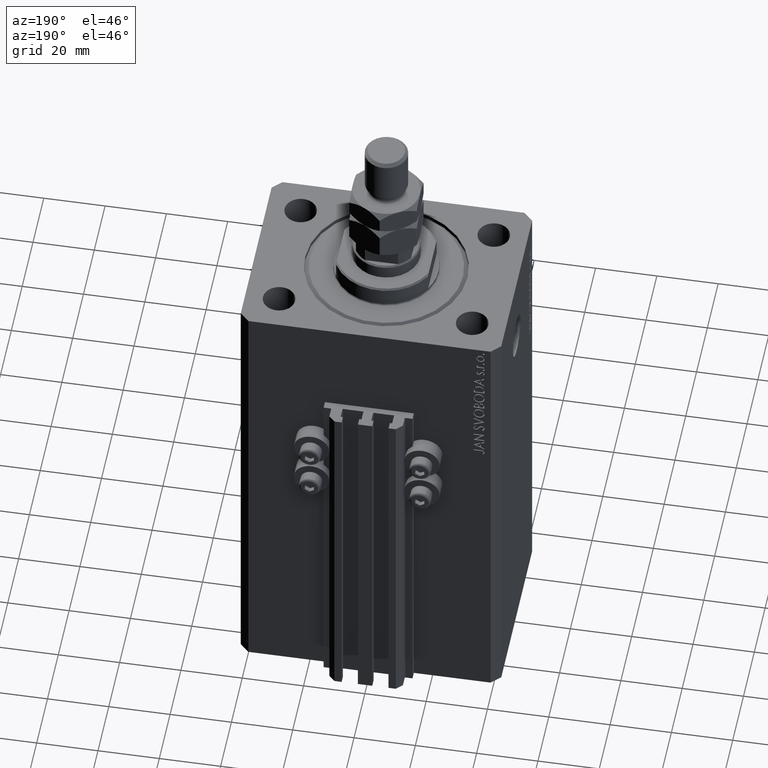
[diagram: clean part render]
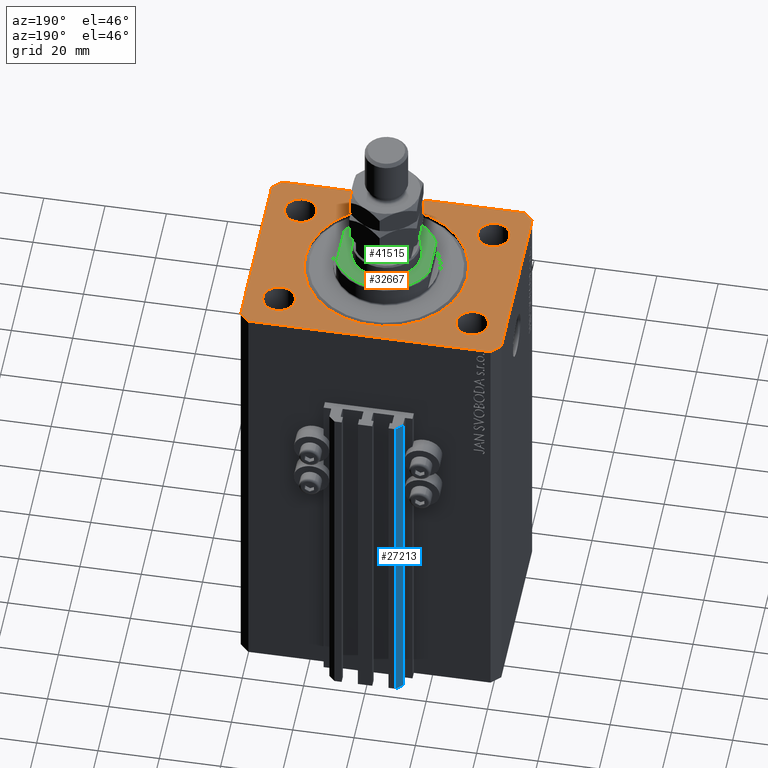
[diagram: same view with three faces highlighted in distinct colors, each labeled with its STEP entity id]
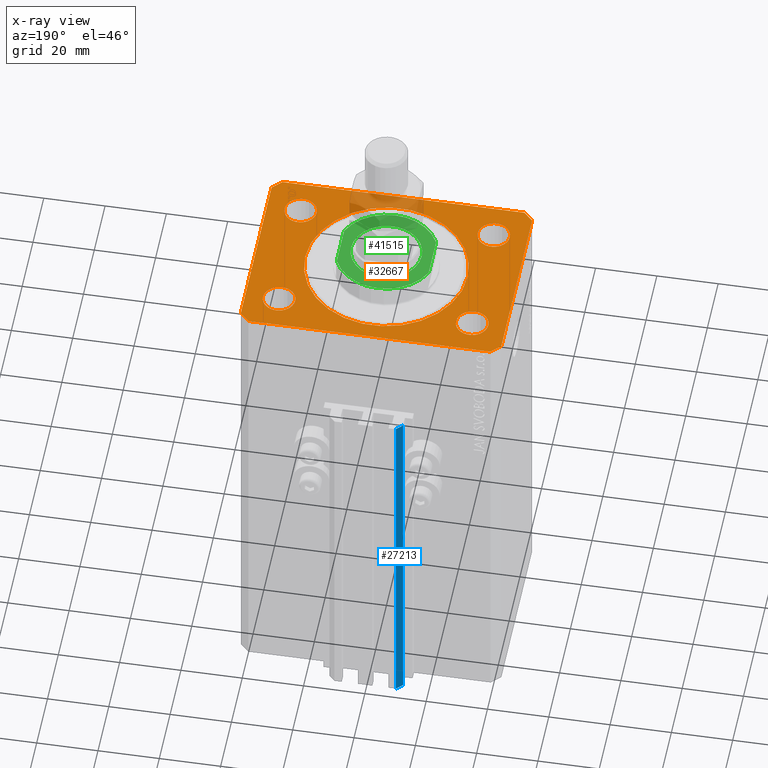
[diagram: x-ray of the same camera — body ghosted, the three highlighted faces saturated]
A machine part, auxiliary view with three faces highlighted in distinct colors.
The next image is the same camera in x-ray (body ghosted, the three faces saturated) — at least one of them is partly hidden behind the body in this view.
Their STEP definitions:

[orange] entity #32667 — the highlighted planar face has unit normal (0, 0, 1).
#562 = CARTESIAN_POINT ( 'NONE',  ( -31.50000000000000000, 19.99999999999999645, 0.000000000000000000 ) ) ;
#889 = LINE ( 'NONE', #18914, #19368 ) ;
#2160 = CARTESIAN_POINT ( 'NONE',  ( -31.49999999999999289, -20.00000000000000355, 0.000000000000000000 ) ) ;
#2200 = DIRECTION ( 'NONE',  ( 1.000000000000000000, 0.000000000000000000, 0.000000000000000000 ) ) ;
#2272 = ORIENTED_EDGE ( 'NONE', *, *, #47955, .F. ) ;
#2347 = VERTEX_POINT ( 'NONE', #26367 ) ;
#2997 = EDGE_LOOP ( 'NONE', ( #14978, #13954, #12397, #28605, #46258, #27015, #31798, #39310 ) ) ;
#3047 = DIRECTION ( 'NONE',  ( 0.7071067811865471286, -0.7071067811865479058, 0.000000000000000000 ) ) ;
#3432 = CARTESIAN_POINT ( 'NONE',  ( 31.50000000000000000, 19.99999999999999289, 0.000000000000000000 ) ) ;
#3764 = EDGE_CURVE ( 'NONE', #33792, #9022, #29417, .T. ) ;
#4537 = AXIS2_PLACEMENT_3D ( 'NONE', #3432, #30129, #18738 ) ;
#4761 = CARTESIAN_POINT ( 'NONE',  ( 42.50000000000051870, 28.49999999999995381, 0.000000000000000000 ) ) ;
#5006 = AXIS2_PLACEMENT_3D ( 'NONE', #43499, #48441, #2200 ) ;
#5321 = FACE_BOUND ( 'NONE', #14851, .T. ) ;
#5451 = VERTEX_POINT ( 'NONE', #4761 ) ;
#5786 = FACE_BOUND ( 'NONE', #26783, .T. ) ;
#5969 = ORIENTED_EDGE ( 'NONE', *, *, #34356, .F. ) ;
#6368 = CIRCLE ( 'NONE', #15837, 5.250000000000000888 ) ;
#6605 = VECTOR ( 'NONE', #39615, 1000.000000000000000 ) ;
#6733 = CARTESIAN_POINT ( 'NONE',  ( 42.50000000000051870, 28.49999999999995381, 0.000000000000000000 ) ) ;
#7341 = VERTEX_POINT ( 'NONE', #32981 ) ;
#7545 = DIRECTION ( 'NONE',  ( -0.7071067811865471286, -0.7071067811865479058, 0.000000000000000000 ) ) ;
#7558 = VECTOR ( 'NONE', #21405, 1000.000000000000000 ) ;
#7919 = EDGE_LOOP ( 'NONE', ( #22899, #40222 ) ) ;
#8034 = DIRECTION ( 'NONE',  ( 1.000000000000000000, 0.000000000000000000, 0.000000000000000000 ) ) ;
#8598 = VERTEX_POINT ( 'NONE', #37117 ) ;
#8608 = CIRCLE ( 'NONE', #23589, 26.50000000000000355 ) ;
#9020 = FACE_BOUND ( 'NONE', #30130, .T. ) ;
#9022 = VERTEX_POINT ( 'NONE', #24703 ) ;
#9254 = FACE_OUTER_BOUND ( 'NONE', #2997, .T. ) ;
#9532 = CARTESIAN_POINT ( 'NONE',  ( 31.50000000000000000, 19.99999999999999289, 0.000000000000000000 ) ) ;
#9817 = VERTEX_POINT ( 'NONE', #18239 ) ;
#9992 = EDGE_CURVE ( 'NONE', #2347, #7341, #21164, .T. ) ;
#11524 = CARTESIAN_POINT ( 'NONE',  ( -42.50000000000000000, -28.50000000000000000, 0.000000000000000000 ) ) ;
#11593 = VERTEX_POINT ( 'NONE', #15615 ) ;
#12174 = EDGE_CURVE ( 'NONE', #34514, #31501, #15444, .T. ) ;
#12397 = ORIENTED_EDGE ( 'NONE', *, *, #26856, .T. ) ;
#12400 = LINE ( 'NONE', #23285, #14248 ) ;
#13043 = DIRECTION ( 'NONE',  ( 0.000000000000000000, 0.000000000000000000, 1.000000000000000000 ) ) ;
#13840 = EDGE_CURVE ( 'NONE', #15559, #9817, #21840, .T. ) ;
#13954 = ORIENTED_EDGE ( 'NONE', *, *, #12174, .T. ) ;
#14127 = CARTESIAN_POINT ( 'NONE',  ( 31.49999999999999289, -20.00000000000000355, 0.000000000000000000 ) ) ;
#14248 = VECTOR ( 'NONE', #23995, 1000.000000000000000 ) ;
#14851 = EDGE_LOOP ( 'NONE', ( #48086, #18113 ) ) ;
#14978 = ORIENTED_EDGE ( 'NONE', *, *, #44657, .T. ) ;
#15385 = DIRECTION ( 'NONE',  ( 0.000000000000000000, 0.000000000000000000, 1.000000000000000000 ) ) ;
#15444 = LINE ( 'NONE', #22361, #20993 ) ;
#15559 = VERTEX_POINT ( 'NONE', #38054 ) ;
#15615 = CARTESIAN_POINT ( 'NONE',  ( 26.25000000000000355, 19.99999999999999289, 0.000000000000000000 ) ) ;
#15837 = AXIS2_PLACEMENT_3D ( 'NONE', #28558, #28323, #47611 ) ;
#17048 = DIRECTION ( 'NONE',  ( 0.000000000000000000, 0.000000000000000000, 1.000000000000000000 ) ) ;
#17351 = CARTESIAN_POINT ( 'NONE',  ( -39.50000000000000711, 31.50000000000000000, 0.000000000000000000 ) ) ;
#17355 = LINE ( 'NONE', #6733, #37916 ) ;
#17384 = DIRECTION ( 'NONE',  ( 1.000000000000000000, 0.000000000000000000, -0.000000000000000000 ) ) ;
#17418 = VERTEX_POINT ( 'NONE', #47021 ) ;
#18113 = ORIENTED_EDGE ( 'NONE', *, *, #48608, .F. ) ;
#18239 = CARTESIAN_POINT ( 'NONE',  ( -26.24999999999999289, -20.00000000000000355, 0.000000000000000000 ) ) ;
#18734 = CIRCLE ( 'NONE', #4537, 5.249999999999997335 ) ;
#18738 = DIRECTION ( 'NONE',  ( 1.000000000000000000, 0.000000000000000000, 0.000000000000000000 ) ) ;
#18792 = EDGE_LOOP ( 'NONE', ( #43779, #2272 ) ) ;
#18914 = CARTESIAN_POINT ( 'NONE',  ( 42.50000000000000711, -28.50000000000000355, 0.000000000000000000 ) ) ;
#19368 = VECTOR ( 'NONE', #30561, 1000.000000000000000 ) ;
#20289 = DIRECTION ( 'NONE',  ( 1.000000000000000000, 0.000000000000000000, 0.000000000000000000 ) ) ;
#20479 = CIRCLE ( 'NONE', #25190, 5.249999999999997335 ) ;
#20513 = ORIENTED_EDGE ( 'NONE', *, *, #45875, .F. ) ;
#20560 = LINE ( 'NONE', #31952, #6605 ) ;
#20579 = DIRECTION ( 'NONE',  ( 1.000000000000000000, 0.000000000000000000, 0.000000000000000000 ) ) ;
#20858 = PLANE ( 'NONE',  #36061 ) ;
#20993 = VECTOR ( 'NONE', #7545, 1000.000000000000000 ) ;
#21005 = ORIENTED_EDGE ( 'NONE', *, *, #21818, .F. ) ;
#21164 = LINE ( 'NONE', #25353, #7558 ) ;
#21405 = DIRECTION ( 'NONE',  ( 0.7071067811865483499, 0.7071067811865466846, 0.000000000000000000 ) ) ;
#21818 = EDGE_CURVE ( 'NONE', #9022, #33792, #8608, .T. ) ;
#21840 = CIRCLE ( 'NONE', #25799, 5.250000000000000888 ) ;
#22351 = CIRCLE ( 'NONE', #5006, 5.250000000000000888 ) ;
#22361 = CARTESIAN_POINT ( 'NONE',  ( -39.50000000000000711, 31.50000000000000000, 0.000000000000000000 ) ) ;
#22596 = VERTEX_POINT ( 'NONE', #37882 ) ;
#22899 = ORIENTED_EDGE ( 'NONE', *, *, #43040, .F. ) ;
#23285 = CARTESIAN_POINT ( 'NONE',  ( -42.50000000000000000, 28.50000000000000000, 0.000000000000000000 ) ) ;
#23589 = AXIS2_PLACEMENT_3D ( 'NONE', #32387, #17048, #40547 ) ;
#23643 = VERTEX_POINT ( 'NONE', #11524 ) ;
#23995 = DIRECTION ( 'NONE',  ( 0.000000000000000000, -1.000000000000000000, 0.000000000000000000 ) ) ;
#24703 = CARTESIAN_POINT ( 'NONE',  ( -26.50000000000000355, 3.245314017740485765E-15, 0.000000000000000000 ) ) ;
#25014 = DIRECTION ( 'NONE',  ( -0.7071067811865356934, 0.7071067811865594521, 0.000000000000000000 ) ) ;
#25190 = AXIS2_PLACEMENT_3D ( 'NONE', #31021, #42153, #8034 ) ;
#25353 = CARTESIAN_POINT ( 'NONE',  ( 39.50000000000000711, -31.50000000000000000, 0.000000000000000000 ) ) ;
#25630 = CARTESIAN_POINT ( 'NONE',  ( -39.50000000000000711, -31.50000000000000000, 0.000000000000000000 ) ) ;
#25648 = CARTESIAN_POINT ( 'NONE',  ( -42.50000000000000000, 28.50000000000000000, 0.000000000000000000 ) ) ;
#25799 = AXIS2_PLACEMENT_3D ( 'NONE', #2160, #13043, #42746 ) ;
#26184 = EDGE_CURVE ( 'NONE', #8598, #2347, #40487, .T. ) ;
#26367 = CARTESIAN_POINT ( 'NONE',  ( 39.50000000000000711, -31.50000000000000000, 0.000000000000000000 ) ) ;
#26378 = AXIS2_PLACEMENT_3D ( 'NONE', #14127, #44313, #20579 ) ;
#26622 = EDGE_CURVE ( 'NONE', #5451, #28223, #17355, .T. ) ;
#26783 = EDGE_LOOP ( 'NONE', ( #5969, #20513 ) ) ;
#26856 = EDGE_CURVE ( 'NONE', #31501, #23643, #12400, .T. ) ;
#27015 = ORIENTED_EDGE ( 'NONE', *, *, #9992, .T. ) ;
#27807 = DIRECTION ( 'NONE',  ( 0.000000000000000000, 0.000000000000000000, 1.000000000000000000 ) ) ;
#28223 = VERTEX_POINT ( 'NONE', #39298 ) ;
#28323 = DIRECTION ( 'NONE',  ( 0.000000000000000000, 0.000000000000000000, 1.000000000000000000 ) ) ;
#28558 = CARTESIAN_POINT ( 'NONE',  ( -31.50000000000000000, 19.99999999999999645, 0.000000000000000000 ) ) ;
#28605 = ORIENTED_EDGE ( 'NONE', *, *, #30233, .T. ) ;
#28989 = DIRECTION ( 'NONE',  ( 1.000000000000000000, 0.000000000000000000, 0.000000000000000000 ) ) ;
#29417 = CIRCLE ( 'NONE', #36490, 26.50000000000000355 ) ;
#30129 = DIRECTION ( 'NONE',  ( 0.000000000000000000, 0.000000000000000000, 1.000000000000000000 ) ) ;
#30130 = EDGE_LOOP ( 'NONE', ( #45336, #21005 ) ) ;
#30233 = EDGE_CURVE ( 'NONE', #23643, #8598, #48059, .T. ) ;
#30561 = DIRECTION ( 'NONE',  ( 8.886653596232072440E-15, 1.000000000000000000, 0.000000000000000000 ) ) ;
#30765 = EDGE_CURVE ( 'NONE', #36926, #11593, #18734, .T. ) ;
#31021 = CARTESIAN_POINT ( 'NONE',  ( 31.49999999999999289, -20.00000000000000355, 0.000000000000000000 ) ) ;
#31501 = VERTEX_POINT ( 'NONE', #25648 ) ;
#31798 = ORIENTED_EDGE ( 'NONE', *, *, #31829, .T. ) ;
#31829 = EDGE_CURVE ( 'NONE', #7341, #5451, #889, .T. ) ;
#31952 = CARTESIAN_POINT ( 'NONE',  ( 39.50000000000056843, 31.50000000000000000, 0.000000000000000000 ) ) ;
#32387 = CARTESIAN_POINT ( 'NONE',  ( 0.000000000000000000, 0.000000000000000000, 0.000000000000000000 ) ) ;
#32642 = VERTEX_POINT ( 'NONE', #42191 ) ;
#32667 = ADVANCED_FACE ( 'NONE', ( #9020, #35472, #5786, #5321, #40154, #9254 ), #20858, .T. ) ;
#32981 = CARTESIAN_POINT ( 'NONE',  ( 42.50000000000000711, -28.50000000000000355, 0.000000000000000000 ) ) ;
#33792 = VERTEX_POINT ( 'NONE', #38414 ) ;
#34356 = EDGE_CURVE ( 'NONE', #32642, #17418, #20479, .T. ) ;
#34514 = VERTEX_POINT ( 'NONE', #17351 ) ;
#35472 = FACE_BOUND ( 'NONE', #7919, .T. ) ;
#35921 = DIRECTION ( 'NONE',  ( 0.000000000000000000, 0.000000000000000000, 1.000000000000000000 ) ) ;
#36061 = AXIS2_PLACEMENT_3D ( 'NONE', #39670, #27807, #17384 ) ;
#36490 = AXIS2_PLACEMENT_3D ( 'NONE', #46832, #35921, #28989 ) ;
#36757 = DIRECTION ( 'NONE',  ( 1.000000000000000000, 0.000000000000000000, 0.000000000000000000 ) ) ;
#36906 = CARTESIAN_POINT ( 'NONE',  ( -42.50000000000000000, -28.50000000000000000, 0.000000000000000000 ) ) ;
#36926 = VERTEX_POINT ( 'NONE', #45463 ) ;
#37117 = CARTESIAN_POINT ( 'NONE',  ( -39.50000000000000711, -31.50000000000000000, 0.000000000000000000 ) ) ;
#37274 = EDGE_CURVE ( 'NONE', #22596, #46942, #6368, .T. ) ;
#37882 = CARTESIAN_POINT ( 'NONE',  ( -26.25000000000000000, 19.99999999999999645, 0.000000000000000000 ) ) ;
#37916 = VECTOR ( 'NONE', #25014, 1000.000000000000114 ) ;
#38054 = CARTESIAN_POINT ( 'NONE',  ( -36.74999999999999289, -20.00000000000000355, 0.000000000000000000 ) ) ;
#38414 = CARTESIAN_POINT ( 'NONE',  ( 26.50000000000000355, 0.000000000000000000, 0.000000000000000000 ) ) ;
#39298 = CARTESIAN_POINT ( 'NONE',  ( 39.50000000000056843, 31.50000000000000000, 0.000000000000000000 ) ) ;
#39310 = ORIENTED_EDGE ( 'NONE', *, *, #26622, .T. ) ;
#39615 = DIRECTION ( 'NONE',  ( -1.000000000000000000, 0.000000000000000000, 0.000000000000000000 ) ) ;
#39670 = CARTESIAN_POINT ( 'NONE',  ( 0.000000000000000000, 0.000000000000000000, 0.000000000000000000 ) ) ;
#39712 = DIRECTION ( 'NONE',  ( 0.000000000000000000, 0.000000000000000000, 1.000000000000000000 ) ) ;
#40154 = FACE_BOUND ( 'NONE', #18792, .T. ) ;
#40222 = ORIENTED_EDGE ( 'NONE', *, *, #13840, .F. ) ;
#40275 = VECTOR ( 'NONE', #36757, 1000.000000000000000 ) ;
#40487 = LINE ( 'NONE', #25630, #40275 ) ;
#40547 = DIRECTION ( 'NONE',  ( 1.000000000000000000, 0.000000000000000000, 0.000000000000000000 ) ) ;
#41640 = VECTOR ( 'NONE', #3047, 1000.000000000000000 ) ;
#42142 = CIRCLE ( 'NONE', #44485, 5.250000000000000888 ) ;
#42153 = DIRECTION ( 'NONE',  ( 0.000000000000000000, 0.000000000000000000, 1.000000000000000000 ) ) ;
#42191 = CARTESIAN_POINT ( 'NONE',  ( 36.74999999999999289, -20.00000000000000355, 0.000000000000000000 ) ) ;
#42746 = DIRECTION ( 'NONE',  ( 1.000000000000000000, 0.000000000000000000, 0.000000000000000000 ) ) ;
#42942 = DIRECTION ( 'NONE',  ( 1.000000000000000000, 0.000000000000000000, 0.000000000000000000 ) ) ;
#43040 = EDGE_CURVE ( 'NONE', #9817, #15559, #22351, .T. ) ;
#43499 = CARTESIAN_POINT ( 'NONE',  ( -31.49999999999999289, -20.00000000000000355, 0.000000000000000000 ) ) ;
#43743 = CIRCLE ( 'NONE', #26378, 5.249999999999997335 ) ;
#43779 = ORIENTED_EDGE ( 'NONE', *, *, #37274, .F. ) ;
#44313 = DIRECTION ( 'NONE',  ( 0.000000000000000000, 0.000000000000000000, 1.000000000000000000 ) ) ;
#44485 = AXIS2_PLACEMENT_3D ( 'NONE', #562, #15385, #20289 ) ;
#44524 = CIRCLE ( 'NONE', #47688, 5.249999999999997335 ) ;
#44657 = EDGE_CURVE ( 'NONE', #28223, #34514, #20560, .T. ) ;
#45336 = ORIENTED_EDGE ( 'NONE', *, *, #3764, .F. ) ;
#45463 = CARTESIAN_POINT ( 'NONE',  ( 36.75000000000000000, 19.99999999999999289, 0.000000000000000000 ) ) ;
#45875 = EDGE_CURVE ( 'NONE', #17418, #32642, #43743, .T. ) ;
#46258 = ORIENTED_EDGE ( 'NONE', *, *, #26184, .T. ) ;
#46832 = CARTESIAN_POINT ( 'NONE',  ( 0.000000000000000000, 0.000000000000000000, 0.000000000000000000 ) ) ;
#46942 = VERTEX_POINT ( 'NONE', #47250 ) ;
#47021 = CARTESIAN_POINT ( 'NONE',  ( 26.24999999999999645, -20.00000000000000355, 0.000000000000000000 ) ) ;
#47250 = CARTESIAN_POINT ( 'NONE',  ( -36.75000000000000000, 19.99999999999999645, 0.000000000000000000 ) ) ;
#47611 = DIRECTION ( 'NONE',  ( 1.000000000000000000, 0.000000000000000000, 0.000000000000000000 ) ) ;
#47688 = AXIS2_PLACEMENT_3D ( 'NONE', #9532, #39712, #42942 ) ;
#47955 = EDGE_CURVE ( 'NONE', #46942, #22596, #42142, .T. ) ;
#48059 = LINE ( 'NONE', #36906, #41640 ) ;
#48086 = ORIENTED_EDGE ( 'NONE', *, *, #30765, .F. ) ;
#48441 = DIRECTION ( 'NONE',  ( 0.000000000000000000, 0.000000000000000000, 1.000000000000000000 ) ) ;
#48608 = EDGE_CURVE ( 'NONE', #11593, #36926, #44524, .T. ) ;

[blue] entity #27213 — the highlighted planar face has unit normal (-0.7071, 0.7071, 0).
#1763 = VERTEX_POINT ( 'NONE', #34655 ) ;
#2427 = DIRECTION ( 'NONE',  ( -0.7071067811865472397, -0.7071067811865479058, 0.000000000000000000 ) ) ;
#3322 = ORIENTED_EDGE ( 'NONE', *, *, #38204, .T. ) ;
#3547 = CARTESIAN_POINT ( 'NONE',  ( -12.00000000000000000, 37.49999999999999289, -153.0000000000000000 ) ) ;
#5134 = VERTEX_POINT ( 'NONE', #33817 ) ;
#7051 = LINE ( 'NONE', #18393, #20260 ) ;
#8974 = LINE ( 'NONE', #47526, #44025 ) ;
#10721 = CARTESIAN_POINT ( 'NONE',  ( -10.00000000000000000, 39.49999999999999289, -33.00000000000000000 ) ) ;
#11196 = DIRECTION ( 'NONE',  ( 0.000000000000000000, 0.000000000000000000, 1.000000000000000000 ) ) ;
#15175 = EDGE_CURVE ( 'NONE', #23337, #1763, #8974, .T. ) ;
#17963 = EDGE_CURVE ( 'NONE', #33683, #23337, #7051, .T. ) ;
#18393 = CARTESIAN_POINT ( 'NONE',  ( -10.00000000000000000, 39.49999999999999289, -153.0000000000000000 ) ) ;
#18781 = VECTOR ( 'NONE', #11196, 1000.000000000000000 ) ;
#18870 = CARTESIAN_POINT ( 'NONE',  ( -10.00000000000000000, 39.49999999999999289, -153.0000000000000000 ) ) ;
#19566 = ORIENTED_EDGE ( 'NONE', *, *, #15175, .F. ) ;
#20196 = EDGE_CURVE ( 'NONE', #5134, #1763, #48303, .T. ) ;
#20198 = EDGE_LOOP ( 'NONE', ( #19566, #30034, #3322, #47515 ) ) ;
#20260 = VECTOR ( 'NONE', #37195, 1000.000000000000000 ) ;
#21146 = DIRECTION ( 'NONE',  ( -0.7071067811865472397, -0.7071067811865479058, 0.000000000000000000 ) ) ;
#21442 = DIRECTION ( 'NONE',  ( -0.7071067811865479058, 0.7071067811865472397, 0.000000000000000000 ) ) ;
#23337 = VERTEX_POINT ( 'NONE', #10721 ) ;
#26134 = VECTOR ( 'NONE', #21146, 999.9999999999998863 ) ;
#27213 = ADVANCED_FACE ( 'NONE', ( #43000 ), #32346, .T. ) ;
#28616 = CARTESIAN_POINT ( 'NONE',  ( -10.00000000000000000, 39.49999999999999289, -153.0000000000000000 ) ) ;
#30034 = ORIENTED_EDGE ( 'NONE', *, *, #17963, .F. ) ;
#32291 = LINE ( 'NONE', #35994, #26134 ) ;
#32346 = PLANE ( 'NONE',  #44265 ) ;
#33683 = VERTEX_POINT ( 'NONE', #18870 ) ;
#33817 = CARTESIAN_POINT ( 'NONE',  ( -12.00000000000000000, 37.49999999999999289, -153.0000000000000000 ) ) ;
#34655 = CARTESIAN_POINT ( 'NONE',  ( -12.00000000000000000, 37.49999999999999289, -33.00000000000000000 ) ) ;
#35195 = DIRECTION ( 'NONE',  ( -0.7071067811865472397, -0.7071067811865479058, 0.000000000000000000 ) ) ;
#35994 = CARTESIAN_POINT ( 'NONE',  ( -10.00000000000000000, 39.49999999999999289, -153.0000000000000000 ) ) ;
#37195 = DIRECTION ( 'NONE',  ( 0.000000000000000000, 0.000000000000000000, 1.000000000000000000 ) ) ;
#38204 = EDGE_CURVE ( 'NONE', #33683, #5134, #32291, .T. ) ;
#43000 = FACE_OUTER_BOUND ( 'NONE', #20198, .T. ) ;
#44025 = VECTOR ( 'NONE', #35195, 999.9999999999998863 ) ;
#44265 = AXIS2_PLACEMENT_3D ( 'NONE', #28616, #21442, #2427 ) ;
#47515 = ORIENTED_EDGE ( 'NONE', *, *, #20196, .T. ) ;
#47526 = CARTESIAN_POINT ( 'NONE',  ( -10.00000000000000000, 39.49999999999999289, -33.00000000000000000 ) ) ;
#48303 = LINE ( 'NONE', #3547, #18781 ) ;

[green] entity #41515 — the highlighted planar face has unit normal (0, 0, 1).
#688 = LINE ( 'NONE', #15751, #8914 ) ;
#1228 = DIRECTION ( 'NONE',  ( -1.000000000000000000, 0.000000000000000000, 0.000000000000000000 ) ) ;
#3148 = CARTESIAN_POINT ( 'NONE',  ( 14.99999999999999645, -6.873863542433781504, -7.000000000000000000 ) ) ;
#4165 = EDGE_CURVE ( 'NONE', #48638, #10195, #688, .T. ) ;
#4245 = CARTESIAN_POINT ( 'NONE',  ( 15.00000000000000000, -42.42640687119285303, -7.000000000000000000 ) ) ;
#6423 = ORIENTED_EDGE ( 'NONE', *, *, #8413, .T. ) ;
#6986 = EDGE_CURVE ( 'NONE', #15669, #10195, #42189, .T. ) ;
#8413 = EDGE_CURVE ( 'NONE', #18184, #38111, #29561, .T. ) ;
#8847 = ORIENTED_EDGE ( 'NONE', *, *, #34976, .T. ) ;
#8914 = VECTOR ( 'NONE', #11048, 1000.000000000000000 ) ;
#9321 = DIRECTION ( 'NONE',  ( -1.000000000000000000, 0.000000000000000000, -0.000000000000000000 ) ) ;
#10195 = VERTEX_POINT ( 'NONE', #42441 ) ;
#11048 = DIRECTION ( 'NONE',  ( -0.000000000000000000, -1.000000000000000000, -0.000000000000000000 ) ) ;
#11827 = CARTESIAN_POINT ( 'NONE',  ( 0.000000000000000000, 0.000000000000000000, -7.000000000000000000 ) ) ;
#11967 = DIRECTION ( 'NONE',  ( -1.000000000000000000, 0.000000000000000000, 0.000000000000000000 ) ) ;
#12572 = CARTESIAN_POINT ( 'NONE',  ( 0.000000000000000000, 0.000000000000000000, -7.000000000000000000 ) ) ;
#12816 = ORIENTED_EDGE ( 'NONE', *, *, #4165, .F. ) ;
#14620 = CARTESIAN_POINT ( 'NONE',  ( 0.000000000000000000, 0.000000000000000000, -7.000000000000000000 ) ) ;
#14970 = VERTEX_POINT ( 'NONE', #18138 ) ;
#15255 = EDGE_CURVE ( 'NONE', #48638, #14970, #21097, .T. ) ;
#15669 = VERTEX_POINT ( 'NONE', #3148 ) ;
#15683 = ORIENTED_EDGE ( 'NONE', *, *, #15255, .T. ) ;
#15751 = CARTESIAN_POINT ( 'NONE',  ( -15.00000000000000000, -42.42640687119285303, -7.000000000000000000 ) ) ;
#17213 = FACE_OUTER_BOUND ( 'NONE', #21357, .T. ) ;
#17829 = DIRECTION ( 'NONE',  ( 0.000000000000000000, 0.000000000000000000, -1.000000000000000000 ) ) ;
#18097 = AXIS2_PLACEMENT_3D ( 'NONE', #12572, #39037, #1228 ) ;
#18138 = CARTESIAN_POINT ( 'NONE',  ( 14.99999999999999645, 6.873863542433781504, -7.000000000000000000 ) ) ;
#18184 = VERTEX_POINT ( 'NONE', #27062 ) ;
#18301 = AXIS2_PLACEMENT_3D ( 'NONE', #46928, #35538, #9321 ) ;
#21097 = CIRCLE ( 'NONE', #44824, 16.50000000000000711 ) ;
#21357 = EDGE_LOOP ( 'NONE', ( #15683, #32331, #25796, #12816 ) ) ;
#23020 = LINE ( 'NONE', #4245, #42755 ) ;
#23899 = CARTESIAN_POINT ( 'NONE',  ( -11.49999999999999645, 0.000000000000000000, -7.000000000000000000 ) ) ;
#24359 = CARTESIAN_POINT ( 'NONE',  ( -14.99999999999999645, 6.873863542433781504, -7.000000000000000000 ) ) ;
#25796 = ORIENTED_EDGE ( 'NONE', *, *, #6986, .T. ) ;
#26798 = CARTESIAN_POINT ( 'NONE',  ( 0.000000000000000000, 0.000000000000000000, -7.000000000000000000 ) ) ;
#27062 = CARTESIAN_POINT ( 'NONE',  ( 11.49999999999999645, 1.408343819019455781E-15, -7.000000000000000000 ) ) ;
#29561 = CIRCLE ( 'NONE', #36637, 11.49999999999999645 ) ;
#31835 = FACE_BOUND ( 'NONE', #32425, .T. ) ;
#32311 = PLANE ( 'NONE',  #18301 ) ;
#32331 = ORIENTED_EDGE ( 'NONE', *, *, #34070, .T. ) ;
#32425 = EDGE_LOOP ( 'NONE', ( #8847, #6423 ) ) ;
#32655 = AXIS2_PLACEMENT_3D ( 'NONE', #11827, #42014, #34833 ) ;
#33670 = DIRECTION ( 'NONE',  ( -1.000000000000000000, 0.000000000000000000, 0.000000000000000000 ) ) ;
#34070 = EDGE_CURVE ( 'NONE', #14970, #15669, #23020, .T. ) ;
#34833 = DIRECTION ( 'NONE',  ( -1.000000000000000000, 0.000000000000000000, 0.000000000000000000 ) ) ;
#34976 = EDGE_CURVE ( 'NONE', #38111, #18184, #35488, .T. ) ;
#35488 = CIRCLE ( 'NONE', #18097, 11.49999999999999645 ) ;
#35538 = DIRECTION ( 'NONE',  ( 0.000000000000000000, 0.000000000000000000, -1.000000000000000000 ) ) ;
#36637 = AXIS2_PLACEMENT_3D ( 'NONE', #26798, #45860, #11967 ) ;
#38111 = VERTEX_POINT ( 'NONE', #23899 ) ;
#39037 = DIRECTION ( 'NONE',  ( -0.000000000000000000, -0.000000000000000000, 1.000000000000000000 ) ) ;
#41515 = ADVANCED_FACE ( 'NONE', ( #31835, #17213 ), #32311, .T. ) ;
#42014 = DIRECTION ( 'NONE',  ( 0.000000000000000000, 0.000000000000000000, -1.000000000000000000 ) ) ;
#42189 = CIRCLE ( 'NONE', #32655, 16.50000000000000711 ) ;
#42441 = CARTESIAN_POINT ( 'NONE',  ( -15.00000000000000000, -6.873863542433783280, -7.000000000000000000 ) ) ;
#42755 = VECTOR ( 'NONE', #46035, 1000.000000000000000 ) ;
#44824 = AXIS2_PLACEMENT_3D ( 'NONE', #14620, #17829, #33670 ) ;
#45860 = DIRECTION ( 'NONE',  ( -0.000000000000000000, -0.000000000000000000, 1.000000000000000000 ) ) ;
#46035 = DIRECTION ( 'NONE',  ( 0.000000000000000000, -1.000000000000000000, -0.000000000000000000 ) ) ;
#46928 = CARTESIAN_POINT ( 'NONE',  ( 0.000000000000000000, 0.000000000000000000, -7.000000000000000000 ) ) ;
#48638 = VERTEX_POINT ( 'NONE', #24359 ) ;